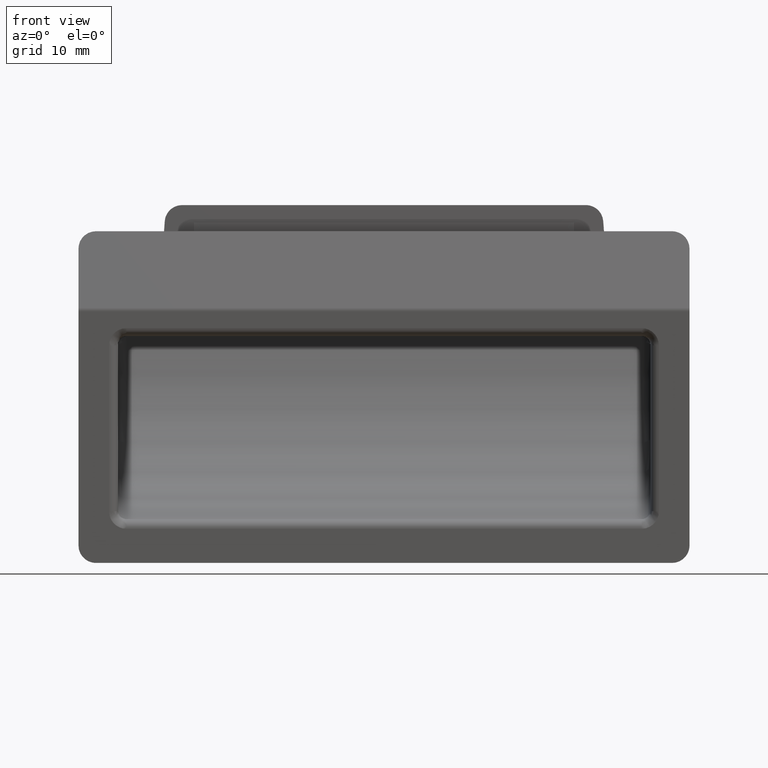
[diagram: clean part render]
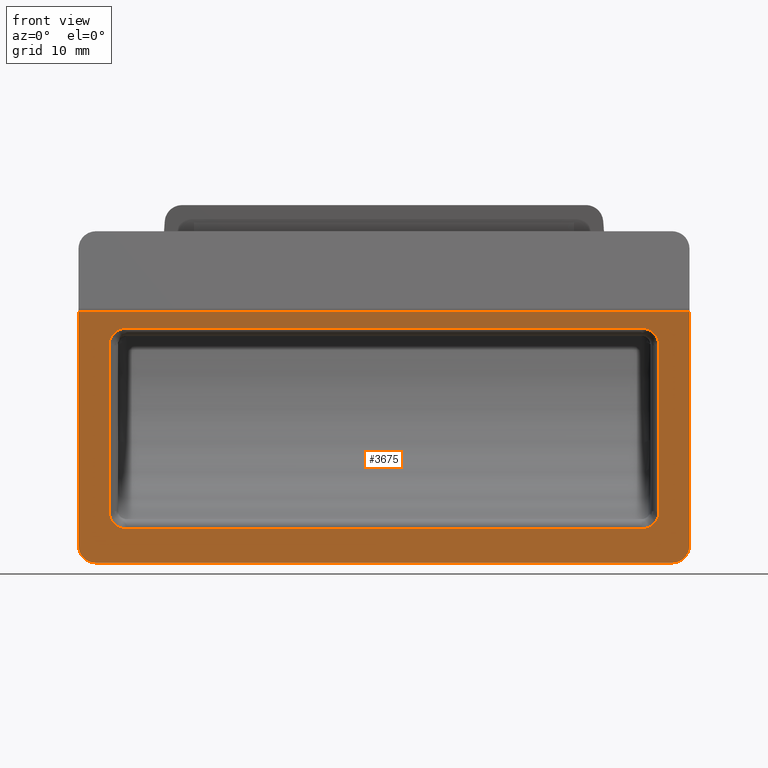
[diagram: same view with one face highlighted and labeled with its STEP entity id]
A machine part, front view. The second image highlights one B-rep face of the part: STEP entity #3675.
In plain terms, the highlighted planar face has unit normal (0, 0.9954, 0.0961).
Its self-contained STEP definition (entity closure, byte-faithful):
#15 = ORIENTED_EDGE ( 'NONE', *, *, #3297, .F. ) ;
#45 = ORIENTED_EDGE ( 'NONE', *, *, #567, .T. ) ;
#47 = LINE ( 'NONE', #1270, #3609 ) ;
#49 = CARTESIAN_POINT ( 'NONE',  ( -29.50000000000000000, -3.812363682148570000, 7.153895192533429500 ) ) ;
#96 = CARTESIAN_POINT ( 'NONE',  ( 33.00000000000000000, -1.214746215283180100, -19.75000000000000000 ) ) ;
#112 = CARTESIAN_POINT ( 'NONE',  ( -30.67157287525380500, -1.591674026976086300, -15.84610480746650300 ) ) ;
#139 = CARTESIAN_POINT ( 'NONE',  ( 31.50000000000000400, -1.671660094192957400, -15.01767768272031100 ) ) ;
#159 = CARTESIAN_POINT ( 'NONE',  ( -30.67157287525380500, -3.812363682148567800, 7.153895192533432200 ) ) ;
#294 = ORIENTED_EDGE ( 'NONE', *, *, #2752, .T. ) ;
#407 = VECTOR ( 'NONE', #3327, 1000.000000000000000 ) ;
#455 =( BOUNDED_CURVE ( )  B_SPLINE_CURVE ( 3, ( #3277, #994, #1589, #3580 ),
 .UNSPECIFIED., .F., .F. ) 
 B_SPLINE_CURVE_WITH_KNOTS ( ( 4, 4 ),
 ( 3.141592653589793100, 4.712388980384689700 ),
 .UNSPECIFIED. ) 
 CURVE ( )  GEOMETRIC_REPRESENTATION_ITEM ( )  RATIONAL_B_SPLINE_CURVE ( ( 1.000000000000000000, 0.8047378541243649400, 0.8047378541243649400, 1.000000000000000000 ) ) 
 REPRESENTATION_ITEM ( '' )  );
#473 = ORIENTED_EDGE ( 'NONE', *, *, #2030, .F. ) ;
#505 = CARTESIAN_POINT ( 'NONE',  ( 30.67157287525380500, -3.812363682148574000, 7.153895192533432200 ) ) ;
#513 = CARTESIAN_POINT ( 'NONE',  ( -31.50000000000000000, -1.784777475251955000, -13.84610480746649900 ) ) ;
#542 = CARTESIAN_POINT ( 'NONE',  ( -35.00000000000000000, -1.294732282500057600, -18.92157287525381200 ) ) ;
#567 = EDGE_CURVE ( 'NONE', #3522, #1247, #2564, .T. ) ;
#569 = ORIENTED_EDGE ( 'NONE', *, *, #735, .T. ) ;
#579 = CARTESIAN_POINT ( 'NONE',  ( 29.50000000000000000, -1.591674026976085200, -15.84610480746649900 ) ) ;
#589 = VECTOR ( 'NONE', #1000, 1000.000000000000000 ) ;
#609 = VERTEX_POINT ( 'NONE', #2020 ) ;
#632 = LINE ( 'NONE', #2226, #3589 ) ;
#674 = VERTEX_POINT ( 'NONE', #1353 ) ;
#719 = CARTESIAN_POINT ( 'NONE',  ( -35.00000000000000000, -1.407849663559050100, -17.75000000000000000 ) ) ;
#720 = VERTEX_POINT ( 'NONE', #2466 ) ;
#735 = EDGE_CURVE ( 'NONE', #2371, #1455, #47, .T. ) ;
#750 = CARTESIAN_POINT ( 'NONE',  ( 31.50000000000000000, -3.995371220189640300, 9.049330407958740000 ) ) ;
#772 = EDGE_CURVE ( 'NONE', #3730, #3218, #455, .T. ) ;
#845 = ORIENTED_EDGE ( 'NONE', *, *, #772, .T. ) ;
#866 = EDGE_CURVE ( 'NONE', #2375, #1012, #3123, .T. ) ;
#890 = DIRECTION ( 'NONE',  ( -1.000000000000000000, 0.0000000000000000000, 0.0000000000000000000 ) ) ;
#901 = VECTOR ( 'NONE', #3027, 1000.000000000000000 ) ;
#957 = VECTOR ( 'NONE', #890, 1000.000000000000000 ) ;
#984 = VECTOR ( 'NONE', #2151, 1000.000000000000000 ) ;
#989 =( BOUNDED_CURVE ( )  B_SPLINE_CURVE ( 3, ( #1001, #1597, #139, #2162 ),
 .UNSPECIFIED., .F., .F. ) 
 B_SPLINE_CURVE_WITH_KNOTS ( ( 4, 4 ),
 ( 0.0000000000000000000, 1.570796326794896600 ),
 .UNSPECIFIED. ) 
 CURVE ( )  GEOMETRIC_REPRESENTATION_ITEM ( )  RATIONAL_B_SPLINE_CURVE ( ( 1.000000000000000000, 0.8047378541243649400, 0.8047378541243649400, 1.000000000000000000 ) ) 
 REPRESENTATION_ITEM ( '' )  );
#994 = CARTESIAN_POINT ( 'NONE',  ( 34.17157287525380800, -1.214746215283181200, -19.75000000000000000 ) ) ;
#1000 = DIRECTION ( 'NONE',  ( 0.0000000000000000000, 0.09610480746658905900, -0.9953712201896385300 ) ) ;
#1001 = CARTESIAN_POINT ( 'NONE',  ( 29.50000000000000000, -1.591674026976085200, -15.84610480746649900 ) ) ;
#1012 = VERTEX_POINT ( 'NONE', #2363 ) ;
#1022 = EDGE_LOOP ( 'NONE', ( #473, #845, #2874, #1427, #569, #1614 ) ) ;
#1027 = CARTESIAN_POINT ( 'NONE',  ( -29.50000000000000000, -3.812363682148570000, 7.153895192533429500 ) ) ;
#1046 = ORIENTED_EDGE ( 'NONE', *, *, #1388, .F. ) ;
#1140 = ORIENTED_EDGE ( 'NONE', *, *, #3089, .F. ) ;
#1153 = CARTESIAN_POINT ( 'NONE',  ( 965.0000000000000000, -1.591674026976085200, -15.84610480746649900 ) ) ;
#1247 = VERTEX_POINT ( 'NONE', #1415 ) ;
#1256 = DIRECTION ( 'NONE',  ( 0.0000000000000000000, 0.9953712201896385300, 0.09610480746658905900 ) ) ;
#1270 = CARTESIAN_POINT ( 'NONE',  ( -35.00000000000000000, -3.995371220189640300, 9.049330407958740000 ) ) ;
#1275 = CARTESIAN_POINT ( 'NONE',  ( 31.50000000000000000, -1.784777475251955000, -13.84610480746649900 ) ) ;
#1313 = CARTESIAN_POINT ( 'NONE',  ( -31.50000000000000400, -3.732377614931691800, 6.325468067787240600 ) ) ;
#1334 = CARTESIAN_POINT ( 'NONE',  ( -31.50000000000000000, -3.725091042869475000, 6.250000000000000000 ) ) ;
#1353 = CARTESIAN_POINT ( 'NONE',  ( -33.00000000000000000, -1.214746215283180100, -19.75000000000000000 ) ) ;
#1388 = EDGE_CURVE ( 'NONE', #2354, #1247, #1491, .T. ) ;
#1405 = EDGE_LOOP ( 'NONE', ( #15, #294, #1140, #45, #1046, #1908, #3724, #1470 ) ) ;
#1415 = CARTESIAN_POINT ( 'NONE',  ( -29.50000000000000000, -1.591674026976085200, -15.84610480746649900 ) ) ;
#1420 = CARTESIAN_POINT ( 'NONE',  ( -34.17157287525380800, -1.214746215283181200, -19.75000000000000000 ) ) ;
#1427 = ORIENTED_EDGE ( 'NONE', *, *, #2838, .T. ) ;
#1455 = VERTEX_POINT ( 'NONE', #719 ) ;
#1467 = EDGE_CURVE ( 'NONE', #609, #3218, #2852, .T. ) ;
#1470 = ORIENTED_EDGE ( 'NONE', *, *, #2646, .T. ) ;
#1491 =( BOUNDED_CURVE ( )  B_SPLINE_CURVE ( 3, ( #2927, #1854, #112, #2128 ),
 .UNSPECIFIED., .F., .F. ) 
 B_SPLINE_CURVE_WITH_KNOTS ( ( 4, 4 ),
 ( 1.570796326794896600, 3.141592653589793100 ),
 .UNSPECIFIED. ) 
 CURVE ( )  GEOMETRIC_REPRESENTATION_ITEM ( )  RATIONAL_B_SPLINE_CURVE ( ( 1.000000000000000000, 0.8047378541243649400, 0.8047378541243649400, 1.000000000000000000 ) ) 
 REPRESENTATION_ITEM ( '' )  );
#1533 = CARTESIAN_POINT ( 'NONE',  ( 965.0000000000000000, -1.214746215283180100, -19.75000000000000000 ) ) ;
#1581 = CARTESIAN_POINT ( 'NONE',  ( 31.50000000000000000, -3.619260233872700000, 5.153895192533429500 ) ) ;
#1589 = CARTESIAN_POINT ( 'NONE',  ( 35.00000000000000000, -1.294732282500057600, -18.92157287525381200 ) ) ;
#1597 = CARTESIAN_POINT ( 'NONE',  ( 30.67157287525380500, -1.591674026976081000, -15.84610480746650300 ) ) ;
#1612 = EDGE_CURVE ( 'NONE', #2354, #1012, #2674, .T. ) ;
#1614 = ORIENTED_EDGE ( 'NONE', *, *, #1899, .T. ) ;
#1638 = CARTESIAN_POINT ( 'NONE',  ( 35.00000000000000000, -1.407849663559050100, -17.75000000000000000 ) ) ;
#1840 = PLANE ( 'NONE',  #3204 ) ;
#1854 = CARTESIAN_POINT ( 'NONE',  ( -31.50000000000000400, -1.671660094192962200, -15.01767768272031100 ) ) ;
#1864 = CARTESIAN_POINT ( 'NONE',  ( 35.00000000000000000, -3.995371220189640300, 9.049330407958740000 ) ) ;
#1870 = CARTESIAN_POINT ( 'NONE',  ( 965.0000000000000000, -3.812363682148570000, 7.153895192533429500 ) ) ;
#1899 = EDGE_CURVE ( 'NONE', #1455, #674, #2133, .T. ) ;
#1908 = ORIENTED_EDGE ( 'NONE', *, *, #1612, .T. ) ;
#1942 = CARTESIAN_POINT ( 'NONE',  ( 31.50000000000000000, -3.619260233872700000, 5.153895192533429500 ) ) ;
#2020 = CARTESIAN_POINT ( 'NONE',  ( 35.00000000000000000, -3.995371220189640300, 9.049330407958740000 ) ) ;
#2030 = EDGE_CURVE ( 'NONE', #3730, #674, #3598, .T. ) ;
#2115 = DIRECTION ( 'NONE',  ( 0.0000000000000000000, -0.09610480746658905900, 0.9953712201896385300 ) ) ;
#2128 = CARTESIAN_POINT ( 'NONE',  ( -29.50000000000000000, -1.591674026976085200, -15.84610480746649900 ) ) ;
#2133 =( BOUNDED_CURVE ( )  B_SPLINE_CURVE ( 3, ( #3717, #542, #1420, #3407 ),
 .UNSPECIFIED., .F., .F. ) 
 B_SPLINE_CURVE_WITH_KNOTS ( ( 4, 4 ),
 ( 4.712388980384689700, 6.283185307179586200 ),
 .UNSPECIFIED. ) 
 CURVE ( )  GEOMETRIC_REPRESENTATION_ITEM ( )  RATIONAL_B_SPLINE_CURVE ( ( 1.000000000000000000, 0.8047378541243649400, 0.8047378541243649400, 1.000000000000000000 ) ) 
 REPRESENTATION_ITEM ( '' )  );
#2151 = DIRECTION ( 'NONE',  ( 1.000000000000000000, 0.0000000000000000000, 0.0000000000000000000 ) ) ;
#2162 = CARTESIAN_POINT ( 'NONE',  ( 31.50000000000000000, -1.784777475251955000, -13.84610480746649900 ) ) ;
#2226 = CARTESIAN_POINT ( 'NONE',  ( 965.0000000000000000, -3.995371220189640300, 9.049330407958740000 ) ) ;
#2354 = VERTEX_POINT ( 'NONE', #513 ) ;
#2363 = CARTESIAN_POINT ( 'NONE',  ( -31.50000000000000000, -3.619260233872700000, 5.153895192533429500 ) ) ;
#2371 = VERTEX_POINT ( 'NONE', #3061 ) ;
#2375 = VERTEX_POINT ( 'NONE', #49 ) ;
#2466 = CARTESIAN_POINT ( 'NONE',  ( 29.50000000000000000, -3.812363682148570000, 7.153895192533429500 ) ) ;
#2503 = CARTESIAN_POINT ( 'NONE',  ( 29.50000000000000000, -3.812363682148570000, 7.153895192533429500 ) ) ;
#2508 = LINE ( 'NONE', #1870, #984 ) ;
#2524 = VERTEX_POINT ( 'NONE', #1275 ) ;
#2547 = VERTEX_POINT ( 'NONE', #1581 ) ;
#2564 = LINE ( 'NONE', #1153, #957 ) ;
#2646 = EDGE_CURVE ( 'NONE', #2375, #720, #2508, .T. ) ;
#2674 = LINE ( 'NONE', #1334, #407 ) ;
#2724 = CARTESIAN_POINT ( 'NONE',  ( -31.50000000000000000, -3.619260233872700000, 5.153895192533429500 ) ) ;
#2752 = EDGE_CURVE ( 'NONE', #2547, #2524, #2987, .T. ) ;
#2838 = EDGE_CURVE ( 'NONE', #609, #2371, #632, .T. ) ;
#2852 = LINE ( 'NONE', #1864, #589 ) ;
#2874 = ORIENTED_EDGE ( 'NONE', *, *, #1467, .F. ) ;
#2927 = CARTESIAN_POINT ( 'NONE',  ( -31.50000000000000000, -1.784777475251955000, -13.84610480746649900 ) ) ;
#2987 = LINE ( 'NONE', #750, #901 ) ;
#3027 = DIRECTION ( 'NONE',  ( -0.0000000000000000000, 0.09610480746658905900, -0.9953712201896385300 ) ) ;
#3061 = CARTESIAN_POINT ( 'NONE',  ( -35.00000000000000000, -3.995371220189640300, 9.049330407958740000 ) ) ;
#3063 = DIRECTION ( 'NONE',  ( -1.000000000000000000, 0.0000000000000000000, 0.0000000000000000000 ) ) ;
#3089 = EDGE_CURVE ( 'NONE', #3522, #2524, #989, .T. ) ;
#3123 =( BOUNDED_CURVE ( )  B_SPLINE_CURVE ( 3, ( #1027, #159, #1313, #2724 ),
 .UNSPECIFIED., .F., .F. ) 
 B_SPLINE_CURVE_WITH_KNOTS ( ( 4, 4 ),
 ( 3.141592653589793100, 4.712388980384689700 ),
 .UNSPECIFIED. ) 
 CURVE ( )  GEOMETRIC_REPRESENTATION_ITEM ( )  RATIONAL_B_SPLINE_CURVE ( ( 1.000000000000000000, 0.8047378541243649400, 0.8047378541243649400, 1.000000000000000000 ) ) 
 REPRESENTATION_ITEM ( '' )  );
#3139 = FACE_OUTER_BOUND ( 'NONE', #1022, .T. ) ;
#3184 =( BOUNDED_CURVE ( )  B_SPLINE_CURVE ( 3, ( #1942, #3677, #505, #2503 ),
 .UNSPECIFIED., .F., .F. ) 
 B_SPLINE_CURVE_WITH_KNOTS ( ( 4, 4 ),
 ( 4.712388980384689700, 6.283185307179586200 ),
 .UNSPECIFIED. ) 
 CURVE ( )  GEOMETRIC_REPRESENTATION_ITEM ( )  RATIONAL_B_SPLINE_CURVE ( ( 1.000000000000000000, 0.8047378541243649400, 0.8047378541243649400, 1.000000000000000000 ) ) 
 REPRESENTATION_ITEM ( '' )  );
#3204 = AXIS2_PLACEMENT_3D ( 'NONE', #3250, #1256, #2115 ) ;
#3218 = VERTEX_POINT ( 'NONE', #1638 ) ;
#3250 = CARTESIAN_POINT ( 'NONE',  ( 965.0000000000000000, -3.995371220189640300, 9.049330407958740000 ) ) ;
#3277 = CARTESIAN_POINT ( 'NONE',  ( 33.00000000000000000, -1.214746215283180100, -19.75000000000000000 ) ) ;
#3297 = EDGE_CURVE ( 'NONE', #2547, #720, #3184, .T. ) ;
#3327 = DIRECTION ( 'NONE',  ( 0.0000000000000000000, -0.09610480746658905900, 0.9953712201896385300 ) ) ;
#3407 = CARTESIAN_POINT ( 'NONE',  ( -33.00000000000000000, -1.214746215283180100, -19.75000000000000000 ) ) ;
#3498 = VECTOR ( 'NONE', #3514, 1000.000000000000000 ) ;
#3514 = DIRECTION ( 'NONE',  ( -1.000000000000000000, 0.0000000000000000000, 0.0000000000000000000 ) ) ;
#3522 = VERTEX_POINT ( 'NONE', #579 ) ;
#3567 = DIRECTION ( 'NONE',  ( 0.0000000000000000000, 0.09610480746658905900, -0.9953712201896385300 ) ) ;
#3580 = CARTESIAN_POINT ( 'NONE',  ( 35.00000000000000000, -1.407849663559050100, -17.75000000000000000 ) ) ;
#3589 = VECTOR ( 'NONE', #3063, 1000.000000000000000 ) ;
#3598 = LINE ( 'NONE', #1533, #3498 ) ;
#3609 = VECTOR ( 'NONE', #3567, 1000.000000000000000 ) ;
#3675 = ADVANCED_FACE ( 'NONE', ( #3139, #3747 ), #1840, .F. ) ;
#3677 = CARTESIAN_POINT ( 'NONE',  ( 31.50000000000000400, -3.732377614931697600, 6.325468067787240600 ) ) ;
#3717 = CARTESIAN_POINT ( 'NONE',  ( -35.00000000000000000, -1.407849663559050100, -17.75000000000000000 ) ) ;
#3724 = ORIENTED_EDGE ( 'NONE', *, *, #866, .F. ) ;
#3730 = VERTEX_POINT ( 'NONE', #96 ) ;
#3747 = FACE_BOUND ( 'NONE', #1405, .T. ) ;